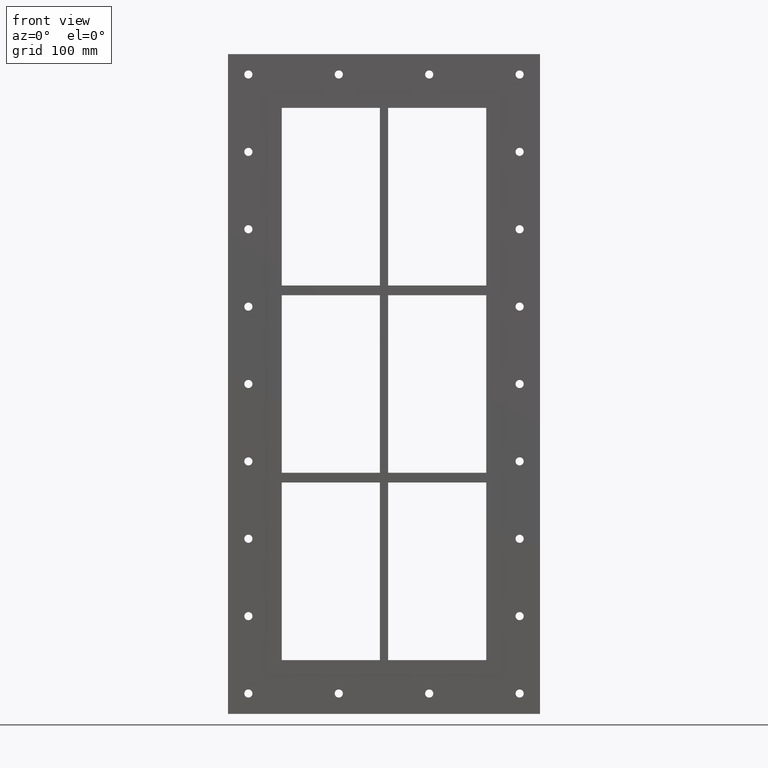
[diagram: clean part render]
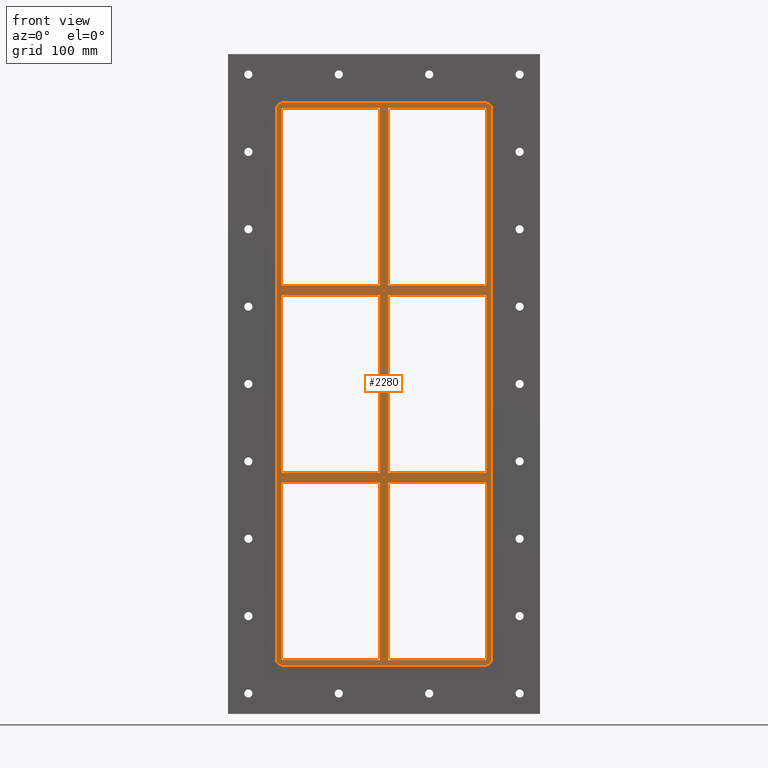
[diagram: same view with one face highlighted and labeled with its STEP entity id]
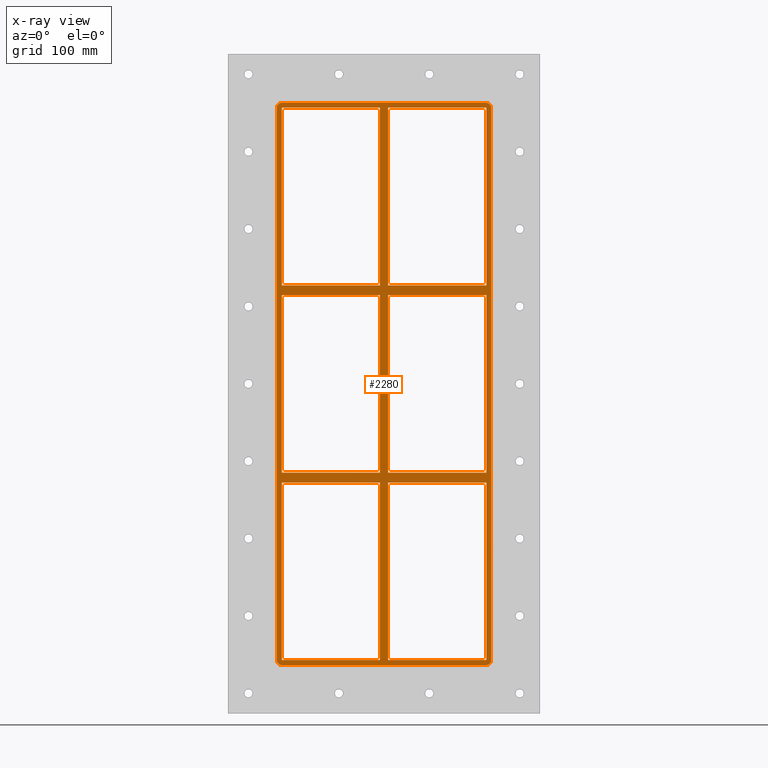
[diagram: x-ray of the same camera — body ghosted, the highlighted face saturated]
A machine part, front view. The second image highlights one B-rep face of the part: STEP entity #2280.
The next image is the same camera in x-ray: the body ghosted, the highlighted face saturated — about 0% of this face is hidden behind the body in this view.
In plain terms, the highlighted planar face has unit normal (0, 1, 0).
Its self-contained STEP definition (entity closure, byte-faithful):
#691=CARTESIAN_POINT('',(5.0,-3.0,108.99999999999066));
#692=VERTEX_POINT('',#691);
#707=CARTESIAN_POINT('',(125.50000000000182,-3.0,108.99999999999066));
#708=VERTEX_POINT('',#707);
#715=CARTESIAN_POINT('',(125.50000000000182,-3.0,108.99999999999066));
#716=DIRECTION('',(-1.0,0.0,0.0));
#717=VECTOR('',#716,120.50000000000182);
#718=LINE('',#715,#717);
#719=EDGE_CURVE('',#708,#692,#718,.T.);
#729=CARTESIAN_POINT('',(5.0,-3.0,120.99999999999994));
#730=VERTEX_POINT('',#729);
#739=CARTESIAN_POINT('',(125.49999999999991,-3.0,120.99999999999994));
#740=VERTEX_POINT('',#739);
#741=CARTESIAN_POINT('',(5.000000000000014,-3.0,120.99999999999994));
#742=DIRECTION('',(1.0,0.0,0.0));
#743=VECTOR('',#742,120.49999999999991);
#744=LINE('',#741,#743);
#745=EDGE_CURVE('',#730,#740,#744,.T.);
#771=CARTESIAN_POINT('',(-5.000000000001368,-3.0,120.99999999999994));
#772=VERTEX_POINT('',#771);
#787=CARTESIAN_POINT('',(-125.4999999999997,-3.0,120.99999999999994));
#788=VERTEX_POINT('',#787);
#795=CARTESIAN_POINT('',(-125.4999999999997,-3.0,120.99999999999994));
#796=DIRECTION('',(1.0,0.0,0.0));
#797=VECTOR('',#796,120.49999999999834);
#798=LINE('',#795,#797);
#799=EDGE_CURVE('',#788,#772,#798,.T.);
#809=CARTESIAN_POINT('',(-5.000000000001368,-3.0,108.99999999999068));
#810=VERTEX_POINT('',#809);
#819=CARTESIAN_POINT('',(-125.4999999999997,-3.0,108.99999999999068));
#820=VERTEX_POINT('',#819);
#821=CARTESIAN_POINT('',(-5.000000000001364,-3.0,108.99999999999068));
#822=DIRECTION('',(-1.0,0.0,0.0));
#823=VECTOR('',#822,120.49999999999832);
#824=LINE('',#821,#823);
#825=EDGE_CURVE('',#810,#820,#824,.T.);
#850=CARTESIAN_POINT('',(-125.4999999999997,-3.0,-109.00000000000006));
#851=VERTEX_POINT('',#850);
#852=CARTESIAN_POINT('',(-125.5,-3.0,-109.00000000000006));
#853=DIRECTION('',(0.0,0.0,1.0));
#854=VECTOR('',#853,217.99999999999071);
#855=LINE('',#852,#854);
#856=EDGE_CURVE('',#851,#820,#855,.T.);
#889=CARTESIAN_POINT('',(125.49999999999991,-3.0,-109.00000000000006));
#890=VERTEX_POINT('',#889);
#897=CARTESIAN_POINT('',(125.5,-3.0,108.99999999999066));
#898=DIRECTION('',(0.0,0.0,-1.0));
#899=VECTOR('',#898,217.99999999999073);
#900=LINE('',#897,#899);
#901=EDGE_CURVE('',#708,#890,#900,.T.);
#912=CARTESIAN_POINT('',(125.5,-3.0,339.00000000000006));
#913=VERTEX_POINT('',#912);
#914=CARTESIAN_POINT('',(125.5,-3.0,339.00000000000006));
#915=DIRECTION('',(0.0,0.0,-1.0));
#916=VECTOR('',#915,218.00000000000011);
#917=LINE('',#914,#916);
#918=EDGE_CURVE('',#913,#740,#917,.T.);
#943=CARTESIAN_POINT('',(-5.000000000001403,-3.0,339.00000000000006));
#944=VERTEX_POINT('',#943);
#945=CARTESIAN_POINT('',(-5.000000000001363,-3.0,120.99999999999994));
#946=DIRECTION('',(0.0,0.0,1.0));
#947=VECTOR('',#946,218.00000000000011);
#948=LINE('',#945,#947);
#949=EDGE_CURVE('',#772,#944,#948,.T.);
#982=CARTESIAN_POINT('',(-5.000000000001315,-3.0,-109.00000000000006));
#983=VERTEX_POINT('',#982);
#990=CARTESIAN_POINT('',(-5.000000000001321,-3.0,-109.00000000000006));
#991=DIRECTION('',(0.0,0.0,1.0));
#992=VECTOR('',#991,217.99999999999073);
#993=LINE('',#990,#992);
#994=EDGE_CURVE('',#983,#810,#993,.T.);
#1013=CARTESIAN_POINT('',(5.0,-3.0,339.00000000000006));
#1014=VERTEX_POINT('',#1013);
#1021=CARTESIAN_POINT('',(5.0,-3.0,339.00000000000006));
#1022=DIRECTION('',(0.0,0.0,-1.0));
#1023=VECTOR('',#1022,218.00000000000011);
#1024=LINE('',#1021,#1023);
#1025=EDGE_CURVE('',#1014,#730,#1024,.T.);
#1037=CARTESIAN_POINT('',(5.0,-3.0,-121.00000000000934));
#1038=VERTEX_POINT('',#1037);
#1053=CARTESIAN_POINT('',(125.50000000000182,-3.0,-121.00000000000934));
#1054=VERTEX_POINT('',#1053);
#1061=CARTESIAN_POINT('',(125.50000000000182,-3.0,-121.00000000000934));
#1062=DIRECTION('',(-1.0,0.0,0.0));
#1063=VECTOR('',#1062,120.50000000000182);
#1064=LINE('',#1061,#1063);
#1065=EDGE_CURVE('',#1054,#1038,#1064,.T.);
#1075=CARTESIAN_POINT('',(-5.000000000001315,-3.0,-121.00000000000932));
#1076=VERTEX_POINT('',#1075);
#1085=CARTESIAN_POINT('',(-125.4999999999997,-3.0,-121.00000000000932));
#1086=VERTEX_POINT('',#1085);
#1087=CARTESIAN_POINT('',(-5.000000000001307,-3.0,-121.00000000000932));
#1088=DIRECTION('',(-1.0,0.0,0.0));
#1089=VECTOR('',#1088,120.49999999999838);
#1090=LINE('',#1087,#1089);
#1091=EDGE_CURVE('',#1076,#1086,#1090,.T.);
#1115=CARTESIAN_POINT('',(5.0,-3.0,-109.00000000000006));
#1116=VERTEX_POINT('',#1115);
#1125=CARTESIAN_POINT('',(5.000000000000014,-3.0,-109.00000000000006));
#1126=DIRECTION('',(1.0,0.0,0.0));
#1127=VECTOR('',#1126,120.49999999999991);
#1128=LINE('',#1125,#1127);
#1129=EDGE_CURVE('',#1116,#890,#1128,.T.);
#1154=CARTESIAN_POINT('',(-125.4999999999997,-3.0,-109.00000000000006));
#1155=DIRECTION('',(1.0,0.0,0.0));
#1156=VECTOR('',#1155,120.49999999999839);
#1157=LINE('',#1154,#1156);
#1158=EDGE_CURVE('',#851,#983,#1157,.T.);
#1177=CARTESIAN_POINT('',(-125.5,-3.0,339.00000000000006));
#1178=VERTEX_POINT('',#1177);
#1185=CARTESIAN_POINT('',(-125.5,-3.0,120.99999999999997));
#1186=DIRECTION('',(0.0,0.0,1.0));
#1187=VECTOR('',#1186,218.00000000000014);
#1188=LINE('',#1185,#1187);
#1189=EDGE_CURVE('',#788,#1178,#1188,.T.);
#1208=CARTESIAN_POINT('',(125.5,-3.0,-339.00000000000006));
#1209=VERTEX_POINT('',#1208);
#1216=CARTESIAN_POINT('',(125.5,-3.0,-121.00000000000929));
#1217=DIRECTION('',(0.0,0.0,-1.0));
#1218=VECTOR('',#1217,217.99999999999082);
#1219=LINE('',#1216,#1218);
#1220=EDGE_CURVE('',#1054,#1209,#1219,.T.);
#1389=CARTESIAN_POINT('',(5.0,-3.0,108.99999999999068));
#1390=DIRECTION('',(0.0,0.0,-1.0));
#1391=VECTOR('',#1390,217.99999999999073);
#1392=LINE('',#1389,#1391);
#1393=EDGE_CURVE('',#692,#1116,#1392,.T.);
#1407=CARTESIAN_POINT('',(-5.000000000001279,-3.0,-339.00000000000006));
#1408=VERTEX_POINT('',#1407);
#1415=CARTESIAN_POINT('',(-5.000000000001279,-3.0,-339.00000000000006));
#1416=DIRECTION('',(0.0,0.0,1.0));
#1417=VECTOR('',#1416,217.99999999999073);
#1418=LINE('',#1415,#1417);
#1419=EDGE_CURVE('',#1408,#1076,#1418,.T.);
#1430=CARTESIAN_POINT('',(5.0,-3.0,-338.99999999998431));
#1431=VERTEX_POINT('',#1430);
#1432=CARTESIAN_POINT('',(5.0,-3.0,-121.00000000000932));
#1433=DIRECTION('',(0.0,0.0,-1.0));
#1434=VECTOR('',#1433,217.99999999997493);
#1435=LINE('',#1432,#1434);
#1436=EDGE_CURVE('',#1038,#1431,#1435,.T.);
#1455=CARTESIAN_POINT('',(-125.5,-3.0,-339.00000000000006));
#1456=VERTEX_POINT('',#1455);
#1463=CARTESIAN_POINT('',(-5.000000000001279,-3.0,-339.00000000000006));
#1464=DIRECTION('',(-1.0,0.0,0.0));
#1465=VECTOR('',#1464,120.49999999999875);
#1466=LINE('',#1463,#1465);
#1467=EDGE_CURVE('',#1408,#1456,#1466,.T.);
#1478=CARTESIAN_POINT('',(125.5,-3.0,-339.00000000000006));
#1479=DIRECTION('',(-1.0,0.0,0.0));
#1480=VECTOR('',#1479,120.5);
#1481=LINE('',#1478,#1480);
#1482=EDGE_CURVE('',#1209,#1431,#1481,.T.);
#1497=CARTESIAN_POINT('',(5.0,-3.0,339.00000000000006));
#1498=DIRECTION('',(1.0,0.0,0.0));
#1499=VECTOR('',#1498,120.50000000000003);
#1500=LINE('',#1497,#1499);
#1501=EDGE_CURVE('',#1014,#913,#1500,.T.);
#1512=CARTESIAN_POINT('',(-125.5,-3.0,339.00000000000006));
#1513=DIRECTION('',(1.0,0.0,0.0));
#1514=VECTOR('',#1513,120.49999999999861);
#1515=LINE('',#1512,#1514);
#1516=EDGE_CURVE('',#1178,#944,#1515,.T.);
#1949=CARTESIAN_POINT('',(-125.5,-3.0,-339.00000000000006));
#1950=DIRECTION('',(0.0,0.0,1.0));
#1951=VECTOR('',#1950,217.99999999999073);
#1952=LINE('',#1949,#1951);
#1953=EDGE_CURVE('',#1456,#1086,#1952,.T.);
#1966=CARTESIAN_POINT('',(125.50000000000003,-3.0,345.00000000000006));
#1967=VERTEX_POINT('',#1966);
#1974=CARTESIAN_POINT('',(131.5,-3.0,339.00000000000006));
#1975=VERTEX_POINT('',#1974);
#1976=CARTESIAN_POINT('',(125.5,-3.0,339.00000000000006));
#1977=DIRECTION('',(0.0,1.0,0.0));
#1978=DIRECTION('',(0.707106781186552,0.0,0.707106781186543));
#1979=AXIS2_PLACEMENT_3D('',#1976,#1977,#1978);
#1980=CIRCLE('',#1979,6.000000000000001);
#1981=EDGE_CURVE('',#1967,#1975,#1980,.T.);
#2021=CARTESIAN_POINT('',(131.5,-3.0,-339.0));
#2022=VERTEX_POINT('',#2021);
#2023=CARTESIAN_POINT('',(131.5,-3.0,-338.99999999999994));
#2024=DIRECTION('',(0.0,0.0,1.0));
#2025=VECTOR('',#2024,678.0);
#2026=LINE('',#2023,#2025);
#2027=EDGE_CURVE('',#2022,#1975,#2026,.T.);
#2061=CARTESIAN_POINT('',(-125.5,-3.0,345.00000000000006));
#2062=VERTEX_POINT('',#2061);
#2069=CARTESIAN_POINT('',(125.5,-3.0,345.00000000000006));
#2070=DIRECTION('',(-1.0,0.0,0.0));
#2071=VECTOR('',#2070,251.0);
#2072=LINE('',#2069,#2071);
#2073=EDGE_CURVE('',#1967,#2062,#2072,.T.);
#2086=CARTESIAN_POINT('',(125.5,-3.0,-345.00000000000006));
#2087=VERTEX_POINT('',#2086);
#2088=CARTESIAN_POINT('',(125.5,-3.0,-339.00000000000006));
#2089=DIRECTION('',(0.0,1.0,0.0));
#2090=DIRECTION('',(0.707106781186552,0.0,-0.707106781186543));
#2091=AXIS2_PLACEMENT_3D('',#2088,#2089,#2090);
#2092=CIRCLE('',#2091,6.000000000000001);
#2093=EDGE_CURVE('',#2022,#2087,#2092,.T.);
#2127=CARTESIAN_POINT('',(-131.5,-3.0,339.0));
#2128=VERTEX_POINT('',#2127);
#2135=CARTESIAN_POINT('',(-125.5,-3.0,339.00000000000006));
#2136=DIRECTION('',(0.0,1.0,0.0));
#2137=DIRECTION('',(-0.707106781186552,0.0,0.707106781186543));
#2138=AXIS2_PLACEMENT_3D('',#2135,#2136,#2137);
#2139=CIRCLE('',#2138,6.000000000000001);
#2140=EDGE_CURVE('',#2128,#2062,#2139,.T.);
#2153=CARTESIAN_POINT('',(-125.50000000000003,-3.0,-345.00000000000006));
#2154=VERTEX_POINT('',#2153);
#2155=CARTESIAN_POINT('',(-125.5,-3.0,-345.00000000000006));
#2156=DIRECTION('',(1.0,0.0,0.0));
#2157=VECTOR('',#2156,251.0);
#2158=LINE('',#2155,#2157);
#2159=EDGE_CURVE('',#2154,#2087,#2158,.T.);
#2193=CARTESIAN_POINT('',(-131.5,-3.0,-339.00000000000006));
#2194=VERTEX_POINT('',#2193);
#2201=CARTESIAN_POINT('',(-131.5,-3.0,338.99999999999994));
#2202=DIRECTION('',(0.0,0.0,-1.0));
#2203=VECTOR('',#2202,678.0);
#2204=LINE('',#2201,#2203);
#2205=EDGE_CURVE('',#2128,#2194,#2204,.T.);
#2218=CARTESIAN_POINT('',(-125.5,-3.0,-339.00000000000006));
#2219=DIRECTION('',(0.0,1.0,0.0));
#2220=DIRECTION('',(-0.707106781186552,0.0,-0.707106781186543));
#2221=AXIS2_PLACEMENT_3D('',#2218,#2219,#2220);
#2222=CIRCLE('',#2221,6.000000000000001);
#2223=EDGE_CURVE('',#2154,#2194,#2222,.T.);
#2229=CARTESIAN_POINT('',(0.0,-3.0,0.0));
#2230=DIRECTION('',(0.0,1.0,0.0));
#2231=DIRECTION('',(0.0,0.0,1.0));
#2232=AXIS2_PLACEMENT_3D('',#2229,#2230,#2231);
#2233=PLANE('',#2232);
#2234=ORIENTED_EDGE('',*,*,#2093,.F.);
#2235=ORIENTED_EDGE('',*,*,#2027,.T.);
#2236=ORIENTED_EDGE('',*,*,#1981,.F.);
#2237=ORIENTED_EDGE('',*,*,#2073,.T.);
#2238=ORIENTED_EDGE('',*,*,#2140,.F.);
#2239=ORIENTED_EDGE('',*,*,#2205,.T.);
#2240=ORIENTED_EDGE('',*,*,#2223,.F.);
#2241=ORIENTED_EDGE('',*,*,#2159,.T.);
#2242=EDGE_LOOP('',(#2234,#2235,#2236,#2237,#2238,#2239,#2240,#2241));
#2243=FACE_OUTER_BOUND('',#2242,.T.);
#2244=ORIENTED_EDGE('',*,*,#1189,.T.);
#2245=ORIENTED_EDGE('',*,*,#1516,.T.);
#2246=ORIENTED_EDGE('',*,*,#949,.F.);
#2247=ORIENTED_EDGE('',*,*,#799,.F.);
#2248=EDGE_LOOP('',(#2244,#2245,#2246,#2247));
#2249=FACE_BOUND('',#2248,.T.);
#2250=ORIENTED_EDGE('',*,*,#901,.T.);
#2251=ORIENTED_EDGE('',*,*,#1129,.F.);
#2252=ORIENTED_EDGE('',*,*,#1393,.F.);
#2253=ORIENTED_EDGE('',*,*,#719,.F.);
#2254=EDGE_LOOP('',(#2250,#2251,#2252,#2253));
#2255=FACE_BOUND('',#2254,.T.);
#2256=ORIENTED_EDGE('',*,*,#825,.F.);
#2257=ORIENTED_EDGE('',*,*,#994,.F.);
#2258=ORIENTED_EDGE('',*,*,#1158,.F.);
#2259=ORIENTED_EDGE('',*,*,#856,.T.);
#2260=EDGE_LOOP('',(#2256,#2257,#2258,#2259));
#2261=FACE_BOUND('',#2260,.T.);
#2262=ORIENTED_EDGE('',*,*,#745,.F.);
#2263=ORIENTED_EDGE('',*,*,#1025,.F.);
#2264=ORIENTED_EDGE('',*,*,#1501,.T.);
#2265=ORIENTED_EDGE('',*,*,#918,.T.);
#2266=EDGE_LOOP('',(#2262,#2263,#2264,#2265));
#2267=FACE_BOUND('',#2266,.T.);
#2268=ORIENTED_EDGE('',*,*,#1220,.T.);
#2269=ORIENTED_EDGE('',*,*,#1482,.T.);
#2270=ORIENTED_EDGE('',*,*,#1436,.F.);
#2271=ORIENTED_EDGE('',*,*,#1065,.F.);
#2272=EDGE_LOOP('',(#2268,#2269,#2270,#2271));
#2273=FACE_BOUND('',#2272,.T.);
#2274=ORIENTED_EDGE('',*,*,#1091,.F.);
#2275=ORIENTED_EDGE('',*,*,#1419,.F.);
#2276=ORIENTED_EDGE('',*,*,#1467,.T.);
#2277=ORIENTED_EDGE('',*,*,#1953,.T.);
#2278=EDGE_LOOP('',(#2274,#2275,#2276,#2277));
#2279=FACE_BOUND('',#2278,.T.);
#2280=ADVANCED_FACE('',(#2243,#2249,#2255,#2261,#2267,#2273,#2279),#2233,.F.);